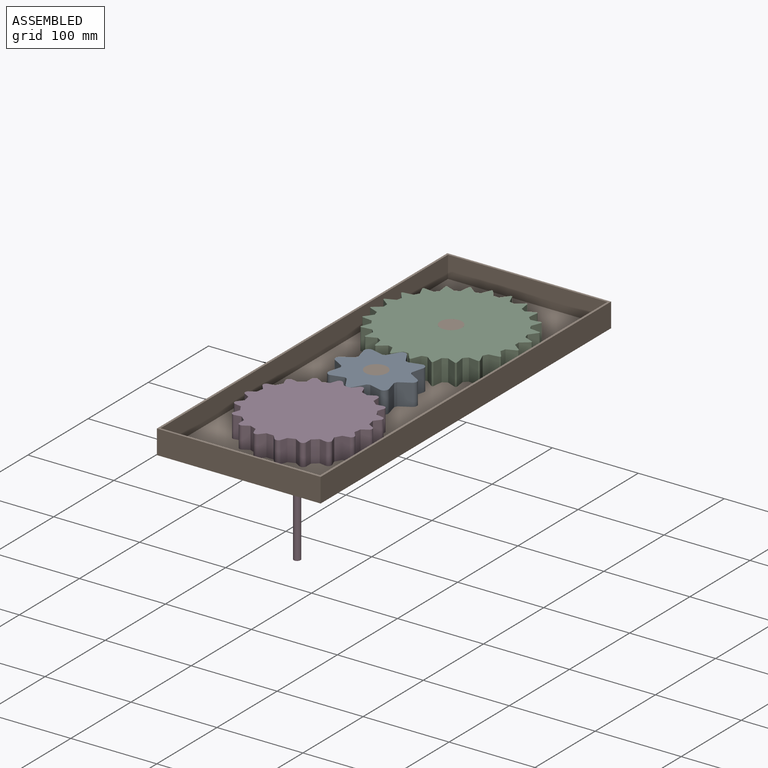
[diagram: assembled view]
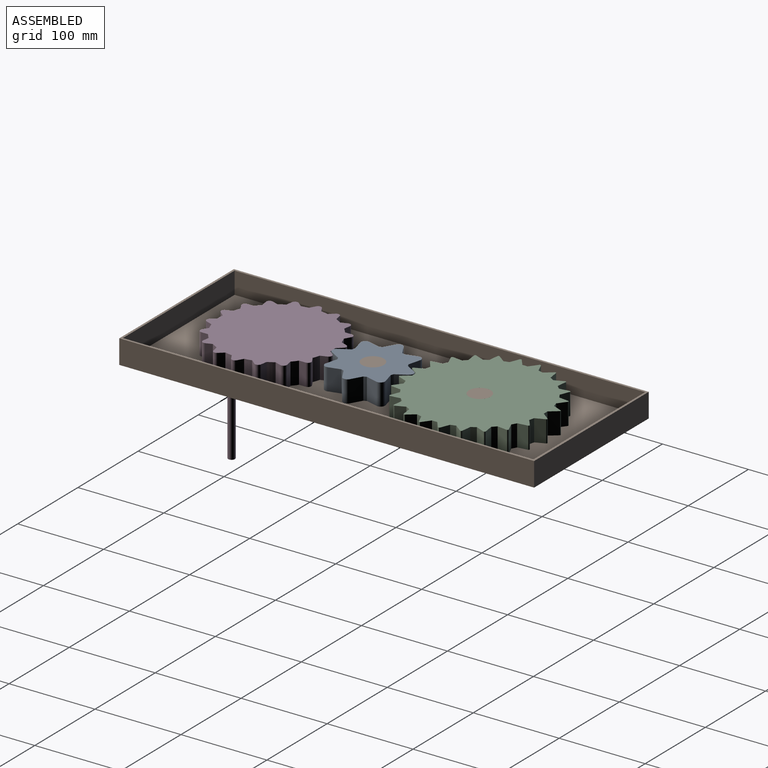
[diagram: assembled view, second angle]
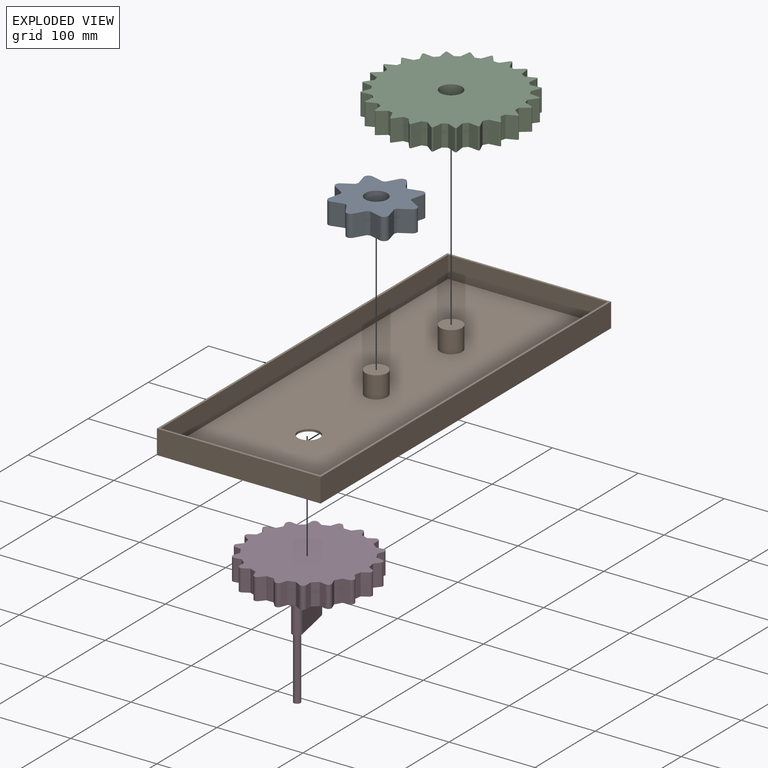
[diagram: exploded view]
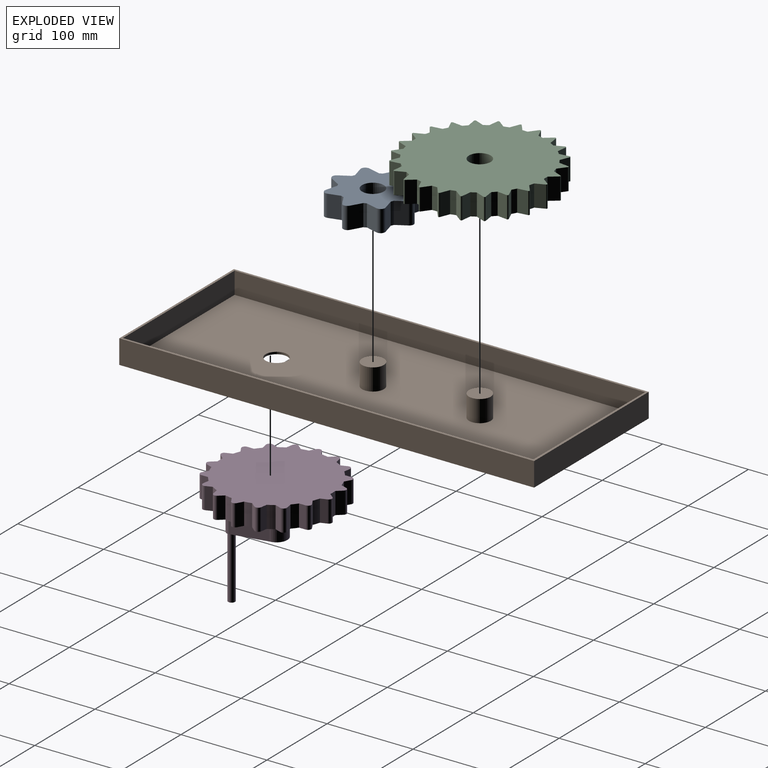
[diagram: exploded view, second angle]
ASSEMBLY  parts=4 mates=3
PART A: 35 faces, bbox 94.7x94.7x25.4 mm
  f0: cylinder r=34.41mm len=25.4mm, axis (0,0,-1), area 87.6mm2, adj f1,f23,f24,f25
  f1: plane 25.4x13.83mm, normal (0.97,-0.26,0), area 363.7mm2, adj f0,f24,f25,f27
  f2: plane 25.4x13.83mm, normal (-0.26,0.97,0), area 363.7mm2, adj f3,f24,f25,f27
  f3: cylinder r=34.41mm len=25.4mm, axis (0,0,-1), area 87.6mm2, adj f2,f4,f24,f25
  f4: plane 25.4x12.4mm, normal (0.87,0.5,0), area 363.7mm2, adj f3,f24,f25,f28
  f5: plane 25.4x12.4mm, normal (-0.87,0.5,0), area 363.7mm2, adj f6,f24,f25,f28
  f6: cylinder r=34.41mm len=25.4mm, axis (0,0,-1), area 87.6mm2, adj f5,f7,f24,f25
  f7: plane 25.4x13.83mm, normal (0.26,0.97,0), area 363.7mm2, adj f6,f24,f25,f29
  f8: plane 25.4x13.83mm, normal (-0.97,-0.26,0), area 363.7mm2, adj f9,f24,f25,f29
  f9: cylinder r=34.41mm len=25.4mm, axis (0,0,-1), area 87.6mm2, adj f8,f10,f24,f25
  f10: plane 25.4x12.4mm, normal (-0.5,0.87,0), area 363.7mm2, adj f9,f24,f25,f30
  f11: plane 25.4x12.4mm, normal (-0.5,-0.87,0), area 363.7mm2, adj f12,f24,f25,f30
  f12: cylinder r=34.41mm len=25.4mm, axis (0,0,-1), area 87.6mm2, adj f11,f13,f24,f25
  f13: plane 25.4x13.83mm, normal (-0.97,0.26,0), area 363.7mm2, adj f12,f24,f25,f31
  f14: plane 25.4x13.83mm, normal (0.26,-0.97,0), area 363.7mm2, adj f15,f24,f25,f31
  f15: cylinder r=34.41mm len=25.4mm, axis (0,0,-1), area 87.6mm2, adj f14,f16,f24,f25
  f16: plane 25.4x12.4mm, normal (-0.87,-0.5,0), area 363.7mm2, adj f15,f24,f25,f32
  f17: plane 25.4x12.4mm, normal (0.87,-0.5,0), area 363.7mm2, adj f18,f24,f25,f32
  f18: cylinder r=34.41mm len=25.4mm, axis (0,0,-1), area 87.6mm2, adj f17,f19,f24,f25
  f19: plane 25.4x13.83mm, normal (-0.26,-0.97,0), area 363.7mm2, adj f18,f24,f25,f33
  f20: plane 25.4x13.83mm, normal (0.97,0.26,0), area 363.7mm2, adj f21,f24,f25,f33
  f21: cylinder r=34.41mm len=25.4mm, axis (0,0,-1), area 87.6mm2, adj f20,f22,f24,f25
  f22: plane 25.4x12.4mm, normal (0.5,-0.87,0), area 363.7mm2, adj f21,f24,f25,f34
  f23: plane 25.4x12.4mm, normal (0.5,0.87,0), area 363.7mm2, adj f0,f24,f25,f34
  f24: plane 94.7x94.7mm, normal (0,0,1), area 4675mm2, adj f0,f1,f2,f3,f4,f5,f6,f7
  f25: plane 94.7x94.7mm, normal (0,0,-1), area 4675mm2, adj f0,f1,f2,f3,f4,f5,f6,f7
  f26: cylinder r=12.7mm len=25.4mm, axis (0,0,1), area 2026.8mm2, adj f24,f25
  f27: cylinder r=5.08mm len=25.4mm, axis (0,0,-1), area 270.2mm2, adj f1,f2,f24,f25
  f28: cylinder r=5.08mm len=25.4mm, axis (0,0,-1), area 270.2mm2, adj f4,f5,f24,f25
  f29: cylinder r=5.08mm len=25.4mm, axis (0,0,-1), area 270.2mm2, adj f7,f8,f24,f25
  f30: cylinder r=5.08mm len=25.4mm, axis (0,0,-1), area 270.2mm2, adj f10,f11,f24,f25
  f31: cylinder r=5.08mm len=25.4mm, axis (0,0,-1), area 270.2mm2, adj f13,f14,f24,f25
  f32: cylinder r=5.08mm len=25.4mm, axis (0,0,-1), area 270.2mm2, adj f16,f17,f24,f25
  f33: cylinder r=5.08mm len=25.4mm, axis (0,0,-1), area 270.2mm2, adj f19,f20,f24,f25
  f34: cylinder r=5.08mm len=25.4mm, axis (0,0,-1), area 270.2mm2, adj f22,f23,f24,f25
PART B: 16 faces, bbox 190.5x482.6x27.9 mm
  f0: plane 482.6x190.5mm, normal (0,0,1), area 3393.5mm2, adj f1,f2,f3,f4,f6,f7,f8,f9
  f1: plane 482.6x27.94mm, normal (1,0,0), area 13483.8mm2, adj f0,f2,f4,f5
  f2: plane 190.5x27.94mm, normal (0,1,0), area 5322.6mm2, adj f0,f1,f3,f5
  f3: plane 482.6x27.94mm, normal (-1,0,0), area 13483.8mm2, adj f0,f2,f4,f5
  f4: plane 190.5x27.94mm, normal (0,-1,0), area 5322.6mm2, adj f0,f1,f3,f5
  f5: plane 482.6x190.5mm, normal (0,0,-1), area 91428.6mm2, adj f1,f2,f3,f4,f13
  f6: plane 477.52x25.4mm, normal (-1,0,0), area 12129mm2, adj f0,f7,f9,f10
  f7: plane 185.42x25.4mm, normal (0,-1,0), area 4709.7mm2, adj f0,f6,f8,f10
  f8: plane 477.52x25.4mm, normal (1,0,0), area 12129mm2, adj f0,f7,f9,f10
  f9: plane 185.42x25.4mm, normal (0,1,0), area 4709.7mm2, adj f0,f6,f8,f10
  f10: plane 477.52x185.42mm, normal (0,0,1), area 87021.6mm2, adj f6,f7,f8,f9,f11,f13,f14
  f11: cylinder r=12.7mm len=25.4mm, axis (0,0,-1), area 2026.8mm2, adj f10,f12
  f12: plane 25.4x25.4mm, normal (0,0,1), area 506.7mm2, adj f11
  f13: cylinder r=12.7mm len=25.4mm, axis (0,0,1), area 202.7mm2, adj f5,f10
  f14: cylinder r=12.7mm len=25.4mm, axis (0,0,-1), area 2026.8mm2, adj f10,f15
  f15: plane 25.4x25.4mm, normal (0,0,1), area 506.7mm2, adj f14
PART C: 99 faces, bbox 172.9x172.9x25.4 mm
  f0: plane 25.4x11.14mm, normal (0.97,0.26,0), area 292.9mm2, adj f49,f50,f56,f98
  f1: plane 25.4x11.53mm, normal (0,-1,0), area 292.9mm2, adj f49,f50,f56,f75
  f2: plane 25.4x9.99mm, normal (0.87,0.5,0), area 292.9mm2, adj f49,f50,f55,f75
  f3: plane 25.4x11.14mm, normal (0.26,-0.97,0), area 292.9mm2, adj f49,f50,f55,f76
  f4: plane 25.4x8.15mm, normal (0.71,0.71,0), area 292.9mm2, adj f49,f50,f54,f76
  f5: plane 25.4x9.99mm, normal (0.5,-0.87,0), area 292.9mm2, adj f49,f50,f54,f77
  f6: plane 25.4x9.99mm, normal (0.5,0.87,0), area 292.9mm2, adj f49,f50,f52,f77
  f7: plane 25.4x8.15mm, normal (0.71,-0.71,0), area 292.9mm2, adj f49,f50,f52,f78
  f8: plane 25.4x11.14mm, normal (0.26,0.97,0), area 292.9mm2, adj f49,f50,f53,f78
  f9: plane 25.4x9.99mm, normal (0.87,-0.5,0), area 292.9mm2, adj f49,f50,f53,f79
  f10: plane 25.4x11.53mm, normal (0,1,0), area 292.9mm2, adj f49,f50,f51,f79
  f11: plane 25.4x11.14mm, normal (0.97,-0.26,0), area 292.9mm2, adj f49,f50,f51,f80
  f12: plane 25.4x11.14mm, normal (-0.26,0.97,0), area 292.9mm2, adj f49,f50,f69,f80
  f13: plane 25.4x11.53mm, normal (1,0,0), area 292.9mm2, adj f49,f50,f69,f81
  f14: plane 25.4x9.99mm, normal (-0.5,0.87,0), area 292.9mm2, adj f49,f50,f70,f81
  f15: plane 25.4x11.14mm, normal (0.97,0.26,0), area 292.9mm2, adj f49,f50,f70,f82
  f16: plane 25.4x8.15mm, normal (-0.71,0.71,0), area 292.9mm2, adj f49,f50,f71,f82
  f17: plane 25.4x9.99mm, normal (0.87,0.5,0), area 292.9mm2, adj f49,f50,f71,f83
  f18: plane 25.4x9.99mm, normal (-0.87,0.5,0), area 292.9mm2, adj f49,f50,f72,f83
  f19: plane 25.4x8.15mm, normal (0.71,0.71,0), area 292.9mm2, adj f49,f50,f72,f84
  f20: plane 25.4x11.14mm, normal (-0.97,0.26,0), area 292.9mm2, adj f49,f50,f74,f84
  f21: plane 25.4x9.99mm, normal (0.5,0.87,0), area 292.9mm2, adj f49,f50,f74,f85
  f22: plane 25.4x11.53mm, normal (-1,0,0), area 292.9mm2, adj f49,f50,f73,f85
  f23: plane 25.4x11.14mm, normal (0.26,0.97,0), area 292.9mm2, adj f49,f50,f73,f86
  f24: plane 25.4x11.14mm, normal (-0.97,-0.26,0), area 292.9mm2, adj f49,f50,f68,f86
  f25: plane 25.4x11.53mm, normal (0,1,0), area 292.9mm2, adj f49,f50,f68,f87
  f26: plane 25.4x9.99mm, normal (-0.87,-0.5,0), area 292.9mm2, adj f49,f50,f67,f87
  f27: plane 25.4x11.14mm, normal (-0.26,0.97,0), area 292.9mm2, adj f49,f50,f67,f88
  f28: plane 25.4x8.15mm, normal (-0.71,-0.71,0), area 292.9mm2, adj f49,f50,f66,f88
  f29: plane 25.4x9.99mm, normal (-0.5,0.87,0), area 292.9mm2, adj f49,f50,f66,f89
  f30: plane 25.4x9.99mm, normal (-0.5,-0.87,0), area 292.9mm2, adj f49,f50,f65,f89
  f31: plane 25.4x8.15mm, normal (-0.71,0.71,0), area 292.9mm2, adj f49,f50,f65,f90
  f32: plane 25.4x11.14mm, normal (-0.26,-0.97,0), area 292.9mm2, adj f49,f50,f64,f90
  f33: plane 25.4x9.99mm, normal (-0.87,0.5,0), area 292.9mm2, adj f49,f50,f64,f91
  f34: plane 25.4x11.53mm, normal (0,-1,0), area 292.9mm2, adj f49,f50,f63,f91
  f35: plane 25.4x11.14mm, normal (-0.97,0.26,0), area 292.9mm2, adj f49,f50,f63,f92
  f36: plane 25.4x11.14mm, normal (0.26,-0.97,0), area 292.9mm2, adj f49,f50,f62,f92
  f37: plane 25.4x11.53mm, normal (-1,0,0), area 292.9mm2, adj f49,f50,f62,f93
  f38: plane 25.4x9.99mm, normal (0.5,-0.87,0), area 292.9mm2, adj f49,f50,f61,f93
  f39: plane 25.4x11.14mm, normal (-0.97,-0.26,0), area 292.9mm2, adj f49,f50,f61,f94
  f40: plane 25.4x8.15mm, normal (0.71,-0.71,0), area 292.9mm2, adj f49,f50,f60,f94
  f41: plane 25.4x9.99mm, normal (-0.87,-0.5,0), area 292.9mm2, adj f49,f50,f60,f95
  f42: plane 25.4x9.99mm, normal (0.87,-0.5,0), area 292.9mm2, adj f49,f50,f59,f95
  f43: plane 25.4x8.15mm, normal (-0.71,-0.71,0), area 292.9mm2, adj f49,f50,f59,f96
  f44: plane 25.4x11.14mm, normal (0.97,-0.26,0), area 292.9mm2, adj f49,f50,f58,f96
  f45: plane 25.4x9.99mm, normal (-0.5,-0.87,0), area 292.9mm2, adj f49,f50,f58,f97
  f46: plane 25.4x11.53mm, normal (1,0,0), area 292.9mm2, adj f49,f50,f57,f97
  f47: plane 25.4x11.14mm, normal (-0.26,-0.97,0), area 292.9mm2, adj f49,f50,f57,f98
  f48: cylinder r=12.7mm len=25.4mm, axis (0,0,-1), area 2026.8mm2, adj f49,f50
  f49: plane 172.92x172.92mm, normal (0,0,1), area 19568mm2, adj f0,f1,f2,f3,f4,f5,f6,f7
  f50: plane 172.92x172.92mm, normal (0,0,-1), area 19568mm2, adj f0,f1,f2,f3,f4,f5,f6,f7
  f51: plane 25.4x4.91mm, normal (0.79,0.61,0), area 157.1mm2, adj f10,f11,f49,f50
  f52: plane 25.4x6.13mm, normal (0.99,0.13,0), area 157.1mm2, adj f6,f7,f49,f50
  f53: plane 25.4x5.71mm, normal (0.92,0.38,0), area 157.1mm2, adj f8,f9,f49,f50
  f54: plane 25.4x6.13mm, normal (0.99,-0.13,0), area 157.1mm2, adj f4,f5,f49,f50
  f55: plane 25.4x5.71mm, normal (0.92,-0.38,0), area 157.1mm2, adj f2,f3,f49,f50
  f56: plane 25.4x4.91mm, normal (0.79,-0.61,0), area 157.1mm2, adj f0,f1,f49,f50
  f57: plane 25.4x4.91mm, normal (0.61,-0.79,0), area 157.1mm2, adj f46,f47,f49,f50
  f58: plane 25.4x5.71mm, normal (0.38,-0.92,0), area 157.1mm2, adj f44,f45,f49,f50
  f59: plane 25.4x6.13mm, normal (0.13,-0.99,0), area 157.1mm2, adj f42,f43,f49,f50
  f60: plane 25.4x6.13mm, normal (-0.13,-0.99,0), area 157.1mm2, adj f40,f41,f49,f50
  f61: plane 25.4x5.71mm, normal (-0.38,-0.92,0), area 157.1mm2, adj f38,f39,f49,f50
  f62: plane 25.4x4.91mm, normal (-0.61,-0.79,0), area 157.1mm2, adj f36,f37,f49,f50
  f63: plane 25.4x4.91mm, normal (-0.79,-0.61,0), area 157.1mm2, adj f34,f35,f49,f50
  f64: plane 25.4x5.71mm, normal (-0.92,-0.38,0), area 157.1mm2, adj f32,f33,f49,f50
  f65: plane 25.4x6.13mm, normal (-0.99,-0.13,0), area 157.1mm2, adj f30,f31,f49,f50
  f66: plane 25.4x6.13mm, normal (-0.99,0.13,0), area 157.1mm2, adj f28,f29,f49,f50
  f67: plane 25.4x5.71mm, normal (-0.92,0.38,0), area 157.1mm2, adj f26,f27,f49,f50
  f68: plane 25.4x4.91mm, normal (-0.79,0.61,0), area 157.1mm2, adj f24,f25,f49,f50
  f69: plane 25.4x4.91mm, normal (0.61,0.79,0), area 157.1mm2, adj f12,f13,f49,f50
  f70: plane 25.4x5.71mm, normal (0.38,0.92,0), area 157.1mm2, adj f14,f15,f49,f50
  f71: plane 25.4x6.13mm, normal (0.13,0.99,0), area 157.1mm2, adj f16,f17,f49,f50
  f72: plane 25.4x6.13mm, normal (-0.13,0.99,0), area 157.1mm2, adj f18,f19,f49,f50
  f73: plane 25.4x4.91mm, normal (-0.61,0.79,0), area 157.1mm2, adj f22,f23,f49,f50
  f74: plane 25.4x5.71mm, normal (-0.38,0.92,0), area 157.1mm2, adj f20,f21,f49,f50
  f75: cylinder r=1.27mm len=25.4mm, axis (0,0,-1), area 67.6mm2, adj f1,f2,f49,f50
  f76: cylinder r=1.27mm len=25.4mm, axis (0,0,-1), area 67.6mm2, adj f3,f4,f49,f50
  f77: cylinder r=1.27mm len=25.4mm, axis (0,0,-1), area 67.6mm2, adj f5,f6,f49,f50
  f78: cylinder r=1.27mm len=25.4mm, axis (0,0,-1), area 67.6mm2, adj f7,f8,f49,f50
  f79: cylinder r=1.27mm len=25.4mm, axis (0,0,-1), area 67.6mm2, adj f9,f10,f49,f50
  f80: cylinder r=1.27mm len=25.4mm, axis (0,0,-1), area 67.6mm2, adj f11,f12,f49,f50
  f81: cylinder r=1.27mm len=25.4mm, axis (0,0,-1), area 67.6mm2, adj f13,f14,f49,f50
  f82: cylinder r=1.27mm len=25.4mm, axis (0,0,-1), area 67.6mm2, adj f15,f16,f49,f50
  f83: cylinder r=1.27mm len=25.4mm, axis (0,0,-1), area 67.6mm2, adj f17,f18,f49,f50
  f84: cylinder r=1.27mm len=25.4mm, axis (0,0,-1), area 67.6mm2, adj f19,f20,f49,f50
  f85: cylinder r=1.27mm len=25.4mm, axis (0,0,-1), area 67.6mm2, adj f21,f22,f49,f50
  f86: cylinder r=1.27mm len=25.4mm, axis (0,0,-1), area 67.6mm2, adj f23,f24,f49,f50
  f87: cylinder r=1.27mm len=25.4mm, axis (0,0,-1), area 67.6mm2, adj f25,f26,f49,f50
  f88: cylinder r=1.27mm len=25.4mm, axis (0,0,-1), area 67.6mm2, adj f27,f28,f49,f50
  f89: cylinder r=1.27mm len=25.4mm, axis (0,0,-1), area 67.6mm2, adj f29,f30,f49,f50
  f90: cylinder r=1.27mm len=25.4mm, axis (0,0,-1), area 67.6mm2, adj f31,f32,f49,f50
  f91: cylinder r=1.27mm len=25.4mm, axis (0,0,-1), area 67.6mm2, adj f33,f34,f49,f50
  f92: cylinder r=1.27mm len=25.4mm, axis (0,0,-1), area 67.6mm2, adj f35,f36,f49,f50
  f93: cylinder r=1.27mm len=25.4mm, axis (0,0,-1), area 67.6mm2, adj f37,f38,f49,f50
  f94: cylinder r=1.27mm len=25.4mm, axis (0,0,-1), area 67.6mm2, adj f39,f40,f49,f50
  f95: cylinder r=1.27mm len=25.4mm, axis (0,0,-1), area 67.6mm2, adj f41,f42,f49,f50
  f96: cylinder r=1.27mm len=25.4mm, axis (0,0,-1), area 67.6mm2, adj f43,f44,f49,f50
  f97: cylinder r=1.27mm len=25.4mm, axis (0,0,-1), area 67.6mm2, adj f45,f46,f49,f50
  f98: cylinder r=1.27mm len=25.4mm, axis (0,0,-1), area 67.6mm2, adj f0,f47,f49,f50
PART D: 82 faces, bbox 147x144.9x136.4 mm
  f0: cylinder r=12.7mm len=38.35mm, axis (0,0,1), area 1963.1mm2, adj f56,f57,f76,f77,f78
  f1: plane 25.4x5.92mm, normal (0.77,-0.64,0), area 196.4mm2, adj f54,f55,f56,f58
  f2: plane 25.4x7.62mm, normal (0.17,0.98,0), area 196.4mm2, adj f3,f55,f56,f58
  f3: cylinder r=65.31mm len=25.4mm, axis (0,0,-1), area 214.3mm2, adj f2,f4,f55,f56
  f4: plane 25.4x7.27mm, normal (0.94,-0.34,0), area 196.4mm2, adj f3,f55,f56,f59
  f5: plane 25.4x7.62mm, normal (-0.17,0.98,0), area 196.4mm2, adj f6,f55,f56,f59
  f6: cylinder r=65.31mm len=25.4mm, axis (0,0,-1), area 214.3mm2, adj f5,f7,f55,f56
  f7: plane 25.4x7.73mm, normal (1,0,0), area 196.4mm2, adj f6,f55,f56,f60
  f8: plane 25.4x6.7mm, normal (-0.5,0.87,0), area 196.4mm2, adj f9,f55,f56,f60
  f9: cylinder r=65.31mm len=25.4mm, axis (0,0,-1), area 214.3mm2, adj f8,f10,f55,f56
  f10: plane 25.4x7.27mm, normal (0.94,0.34,0), area 196.4mm2, adj f9,f55,f56,f61
  f11: plane 25.4x5.92mm, normal (-0.77,0.64,0), area 196.4mm2, adj f12,f55,f56,f61
  f12: cylinder r=65.31mm len=25.4mm, axis (0,0,-1), area 214.3mm2, adj f11,f13,f55,f56
  f13: plane 25.4x5.92mm, normal (0.77,0.64,0), area 196.4mm2, adj f12,f55,f56,f62
  f14: plane 25.4x7.27mm, normal (-0.94,0.34,0), area 196.4mm2, adj f15,f55,f56,f62
  f15: cylinder r=65.31mm len=25.4mm, axis (0,0,-1), area 214.3mm2, adj f14,f16,f55,f56
  f16: plane 25.4x6.7mm, normal (0.5,0.87,0), area 196.4mm2, adj f15,f55,f56,f63
  f17: plane 25.4x7.73mm, normal (-1,0,0), area 196.4mm2, adj f18,f55,f56,f63
  f18: cylinder r=65.31mm len=25.4mm, axis (0,0,-1), area 214.3mm2, adj f17,f19,f55,f56
  f19: plane 25.4x7.62mm, normal (0.17,0.98,0), area 196.4mm2, adj f18,f55,f56,f64
  f20: plane 25.4x7.27mm, normal (-0.94,-0.34,0), area 196.4mm2, adj f21,f55,f56,f64
  f21: cylinder r=65.31mm len=25.4mm, axis (0,0,-1), area 214.3mm2, adj f20,f22,f55,f56
  f22: plane 25.4x7.62mm, normal (-0.17,0.98,0), area 196.4mm2, adj f21,f55,f56,f65
  f23: plane 25.4x5.92mm, normal (-0.77,-0.64,0), area 196.4mm2, adj f24,f55,f56,f65
  f24: cylinder r=65.31mm len=25.4mm, axis (0,0,-1), area 214.3mm2, adj f23,f25,f55,f56
  f25: plane 25.4x6.7mm, normal (-0.5,0.87,0), area 196.4mm2, adj f24,f55,f56,f66
  f26: plane 25.4x6.7mm, normal (-0.5,-0.87,0), area 196.4mm2, adj f27,f55,f56,f66
  f27: cylinder r=65.31mm len=25.4mm, axis (0,0,-1), area 214.3mm2, adj f26,f28,f55,f56
  f28: plane 25.4x5.92mm, normal (-0.77,0.64,0), area 196.4mm2, adj f27,f55,f56,f67
  f29: plane 25.4x7.62mm, normal (-0.17,-0.98,0), area 196.4mm2, adj f30,f55,f56,f67
  f30: cylinder r=65.31mm len=25.4mm, axis (0,0,-1), area 214.3mm2, adj f29,f31,f55,f56
  f31: plane 25.4x7.27mm, normal (-0.94,0.34,0), area 196.4mm2, adj f30,f55,f56,f68
  f32: plane 25.4x7.62mm, normal (0.17,-0.98,0), area 196.4mm2, adj f33,f55,f56,f68
  f33: cylinder r=65.31mm len=25.4mm, axis (0,0,-1), area 214.3mm2, adj f32,f34,f55,f56
  f34: plane 25.4x7.73mm, normal (-1,0,0), area 196.4mm2, adj f33,f55,f56,f69
  f35: plane 25.4x6.7mm, normal (0.5,-0.87,0), area 196.4mm2, adj f36,f55,f56,f69
  f36: cylinder r=65.31mm len=25.4mm, axis (0,0,-1), area 214.3mm2, adj f35,f37,f55,f56
  f37: plane 25.4x7.27mm, normal (-0.94,-0.34,0), area 196.4mm2, adj f36,f55,f56,f70
  f38: plane 25.4x5.92mm, normal (0.77,-0.64,0), area 196.4mm2, adj f39,f55,f56,f70
  f39: cylinder r=65.31mm len=25.4mm, axis (0,0,-1), area 214.3mm2, adj f38,f40,f55,f56
  f40: plane 25.4x5.92mm, normal (-0.77,-0.64,0), area 196.4mm2, adj f39,f55,f56,f71
  f41: plane 25.4x7.27mm, normal (0.94,-0.34,0), area 196.4mm2, adj f42,f55,f56,f71
  f42: cylinder r=65.31mm len=25.4mm, axis (0,0,-1), area 214.3mm2, adj f41,f43,f55,f56
  f43: plane 25.4x6.7mm, normal (-0.5,-0.87,0), area 196.4mm2, adj f42,f55,f56,f72
  f44: plane 25.4x7.73mm, normal (1,0,0), area 196.4mm2, adj f45,f55,f56,f72
  f45: cylinder r=65.31mm len=25.4mm, axis (0,0,-1), area 214.3mm2, adj f44,f46,f55,f56
  f46: plane 25.4x7.62mm, normal (-0.17,-0.98,0), area 196.4mm2, adj f45,f55,f56,f73
  f47: plane 25.4x7.27mm, normal (0.94,0.34,0), area 196.4mm2, adj f48,f55,f56,f73
  f48: cylinder r=65.31mm len=25.4mm, axis (0,0,-1), area 214.3mm2, adj f47,f49,f55,f56
  f49: plane 25.4x7.62mm, normal (0.17,-0.98,0), area 196.4mm2, adj f48,f55,f56,f74
  f50: plane 25.4x5.92mm, normal (0.77,0.64,0), area 196.4mm2, adj f51,f55,f56,f74
  f51: cylinder r=65.31mm len=25.4mm, axis (0,0,-1), area 214.3mm2, adj f50,f52,f55,f56
  f52: plane 25.4x6.7mm, normal (0.5,-0.87,0), area 196.4mm2, adj f51,f55,f56,f75
  f53: plane 25.4x6.7mm, normal (0.5,0.87,0), area 196.4mm2, adj f54,f55,f56,f75
  f54: cylinder r=65.31mm len=25.4mm, axis (0,0,-1), area 214.3mm2, adj f1,f53,f55,f56
  f55: plane 147.04x144.92mm, normal (0,0,1), area 14755.6mm2, adj f1,f2,f3,f4,f5,f6,f7,f8
  f56: plane 147.04x144.92mm, normal (0,0,-1), area 14248.9mm2, adj f0,f1,f2,f3,f4,f5,f6,f7
  f57: plane 62.73x25.4mm, normal (0,0,-1), area 1074.5mm2, adj f0,f77,f78,f79,f80
  f58: cylinder r=3.81mm len=25.4mm, axis (0,0,-1), area 202.7mm2, adj f1,f2,f55,f56
  f59: cylinder r=3.81mm len=25.4mm, axis (0,0,-1), area 202.7mm2, adj f4,f5,f55,f56
  f60: cylinder r=3.81mm len=25.4mm, axis (0,0,-1), area 202.7mm2, adj f7,f8,f55,f56
  f61: cylinder r=3.81mm len=25.4mm, axis (0,0,-1), area 202.7mm2, adj f10,f11,f55,f56
  f62: cylinder r=3.81mm len=25.4mm, axis (0,0,-1), area 202.7mm2, adj f13,f14,f55,f56
  f63: cylinder r=3.81mm len=25.4mm, axis (0,0,-1), area 202.7mm2, adj f16,f17,f55,f56
  f64: cylinder r=3.81mm len=25.4mm, axis (0,0,-1), area 202.7mm2, adj f19,f20,f55,f56
  f65: cylinder r=3.81mm len=25.4mm, axis (0,0,-1), area 202.7mm2, adj f22,f23,f55,f56
  f66: cylinder r=3.81mm len=25.4mm, axis (0,0,-1), area 202.7mm2, adj f25,f26,f55,f56
  f67: cylinder r=3.81mm len=25.4mm, axis (0,0,-1), area 202.7mm2, adj f28,f29,f55,f56
  f68: cylinder r=3.81mm len=25.4mm, axis (0,0,-1), area 202.7mm2, adj f31,f32,f55,f56
  f69: cylinder r=3.81mm len=25.4mm, axis (0,0,-1), area 202.7mm2, adj f34,f35,f55,f56
  f70: cylinder r=3.81mm len=25.4mm, axis (0,0,-1), area 202.7mm2, adj f37,f38,f55,f56
  f71: cylinder r=3.81mm len=25.4mm, axis (0,0,-1), area 202.7mm2, adj f40,f41,f55,f56
  f72: cylinder r=3.81mm len=25.4mm, axis (0,0,-1), area 202.7mm2, adj f43,f44,f55,f56
  f73: cylinder r=3.81mm len=25.4mm, axis (0,0,-1), area 202.7mm2, adj f46,f47,f55,f56
  f74: cylinder r=3.81mm len=25.4mm, axis (0,0,-1), area 202.7mm2, adj f49,f50,f55,f56
  f75: cylinder r=3.81mm len=25.4mm, axis (0,0,-1), area 202.7mm2, adj f52,f53,f55,f56
  f76: plane 46.14x24.18mm, normal (0,0,1), area 617mm2, adj f0,f77,f78,f79
  f77: plane 40.38x34.29mm, normal (-0.99,0.15,0), area 1401.4mm2, adj f0,f57,f76,f79
  f78: plane 40.38x34.29mm, normal (0.99,0.15,0), area 1401.4mm2, adj f0,f57,f76,f79
  f79: cylinder r=5.77mm len=34.29mm, axis (0,0,-1), area 621.2mm2, adj f57,f76,f77,f78
  f80: cylinder r=3.96mm len=72.64mm, axis (0,0,1), area 1806.1mm2, adj f57,f81
  f81: plane 7.91x7.91mm, normal (0,0,-1), area 49.2mm2, adj f80
PLACE A t=(-75.88,30.24,-12.6)mm
PLACE B t=(-75.88,43.11,-15.14)mm fixed
PLACE C rot(axis=(0,0,-1),7deg) t=(-75.88,154.61,-12.6)mm
PLACE D rot(axis=(0,0,-1),159.5deg) t=(-75.88,-81.91,-12.6)mm
MATE revolute D.f0 <-> B.f13  axis (0,0,-1) through (-75.88,-81.91,-12.6)mm
MATE revolute C.f48 <-> B.f11  axis (0,0,-1) through (-75.88,154.61,12.8)mm
MATE revolute A.f0 <-> B.f14  axis (0,0,1) through (-75.88,30.24,12.8)mm
